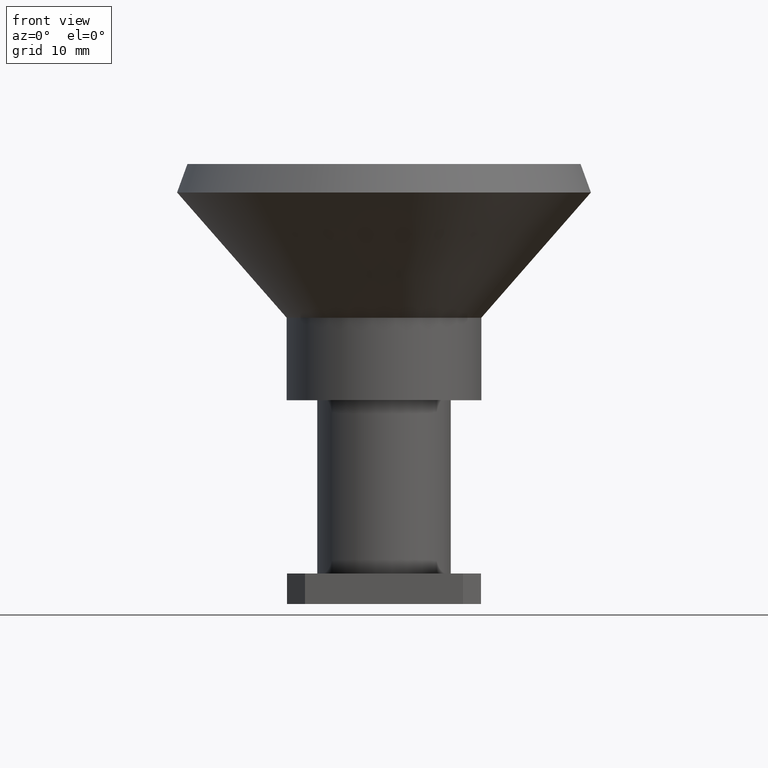
[diagram: clean part render]
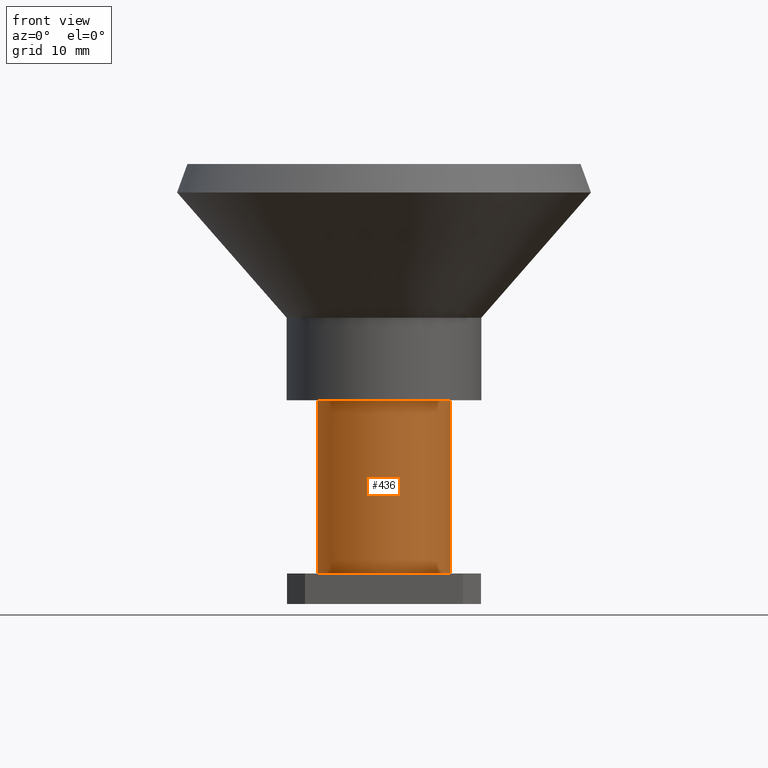
[diagram: same view with one face highlighted and labeled with its STEP entity id]
A machine part, front view. The second image highlights one B-rep face of the part: STEP entity #436.
In plain terms, the highlighted cylindrical surface (partial cylindrical patch) has radius 6.5532 mm, axis along (0, 0, 1).
Its self-contained STEP definition (entity closure, byte-faithful):
#40 = CARTESIAN_POINT ( 'NONE',  ( 0.2579999999647116200, 0.0000000000000000000, -0.9129999999963156500 ) ) ;
#48 = AXIS2_PLACEMENT_3D ( 'NONE', #327, #404, #636 ) ;
#59 = VERTEX_POINT ( 'NONE', #169 ) ;
#75 = EDGE_LOOP ( 'NONE', ( #505, #424, #207, #618 ) ) ;
#90 = CARTESIAN_POINT ( 'NONE',  ( 0.2579999999647115700, 0.0000000000000000000, -1.581999999996315700 ) ) ;
#112 = EDGE_CURVE ( 'NONE', #59, #340, #582, .T. ) ;
#131 = VERTEX_POINT ( 'NONE', #975 ) ;
#169 = CARTESIAN_POINT ( 'NONE',  ( -0.2579999999647114000, 3.159588741368012100E-017, -0.9129999999963156500 ) ) ;
#207 = ORIENTED_EDGE ( 'NONE', *, *, #572, .T. ) ;
#327 = CARTESIAN_POINT ( 'NONE',  ( 9.650216777326263200E-017, 0.0000000000000000000, -0.9129999999963156500 ) ) ;
#340 = VERTEX_POINT ( 'NONE', #40 ) ;
#346 = DIRECTION ( 'NONE',  ( 1.224646799147353200E-016, 0.0000000000000000000, 1.000000000000000000 ) ) ;
#373 = CYLINDRICAL_SURFACE ( 'NONE', #861, 0.2579999999647115700 ) ;
#399 = FACE_OUTER_BOUND ( 'NONE', #75, .T. ) ;
#404 = DIRECTION ( 'NONE',  ( 1.224646799147353200E-016, 0.0000000000000000000, 1.000000000000000000 ) ) ;
#424 = ORIENTED_EDGE ( 'NONE', *, *, #725, .T. ) ;
#435 = CARTESIAN_POINT ( 'NONE',  ( -0.2579999999647115700, 3.159588741368012700E-017, -1.701000000000000100 ) ) ;
#436 = ADVANCED_FACE ( 'NONE', ( #399 ), #373, .T. ) ;
#445 = DIRECTION ( 'NONE',  ( 1.000000000000000000, 0.0000000000000000000, 0.0000000000000000000 ) ) ;
#505 = ORIENTED_EDGE ( 'NONE', *, *, #948, .F. ) ;
#531 = CIRCLE ( 'NONE', #788, 0.2579999999647115700 ) ;
#549 = DIRECTION ( 'NONE',  ( -1.000000000000000000, 0.0000000000000000000, 0.0000000000000000000 ) ) ;
#572 = EDGE_CURVE ( 'NONE', #895, #340, #881, .T. ) ;
#582 = CIRCLE ( 'NONE', #48, 0.2579999999647115100 ) ;
#618 = ORIENTED_EDGE ( 'NONE', *, *, #112, .F. ) ;
#636 = DIRECTION ( 'NONE',  ( 1.000000000000000000, 0.0000000000000000000, 0.0000000000000000000 ) ) ;
#725 = EDGE_CURVE ( 'NONE', #131, #895, #531, .T. ) ;
#751 = LINE ( 'NONE', #435, #1008 ) ;
#754 = CARTESIAN_POINT ( 'NONE',  ( 0.0000000000000000000, 0.0000000000000000000, -1.701000000000000100 ) ) ;
#788 = AXIS2_PLACEMENT_3D ( 'NONE', #1041, #887, #549 ) ;
#842 = DIRECTION ( 'NONE',  ( 1.224646799147353200E-016, 0.0000000000000000000, 1.000000000000000000 ) ) ;
#861 = AXIS2_PLACEMENT_3D ( 'NONE', #754, #842, #445 ) ;
#881 = LINE ( 'NONE', #1016, #920 ) ;
#887 = DIRECTION ( 'NONE',  ( 0.0000000000000000000, -0.0000000000000000000, 1.000000000000000000 ) ) ;
#895 = VERTEX_POINT ( 'NONE', #90 ) ;
#920 = VECTOR ( 'NONE', #942, 39.37007874015748100 ) ;
#942 = DIRECTION ( 'NONE',  ( 1.224646799147353200E-016, 0.0000000000000000000, 1.000000000000000000 ) ) ;
#948 = EDGE_CURVE ( 'NONE', #131, #59, #751, .T. ) ;
#975 = CARTESIAN_POINT ( 'NONE',  ( -0.2579999999647115700, 3.159588741368013300E-017, -1.581999999996315700 ) ) ;
#1008 = VECTOR ( 'NONE', #346, 39.37007874015748100 ) ;
#1016 = CARTESIAN_POINT ( 'NONE',  ( 0.2579999999647115700, 0.0000000000000000000, -1.701000000000000100 ) ) ;
#1041 = CARTESIAN_POINT ( 'NONE',  ( 1.457329691030468400E-017, 0.0000000000000000000, -1.581999999996315700 ) ) ;